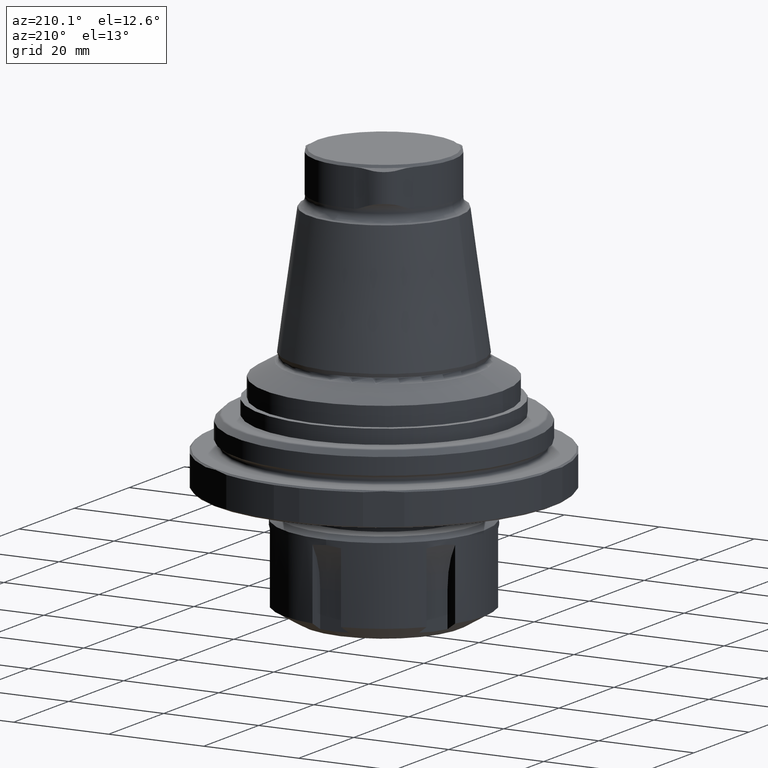
[diagram: clean part render]
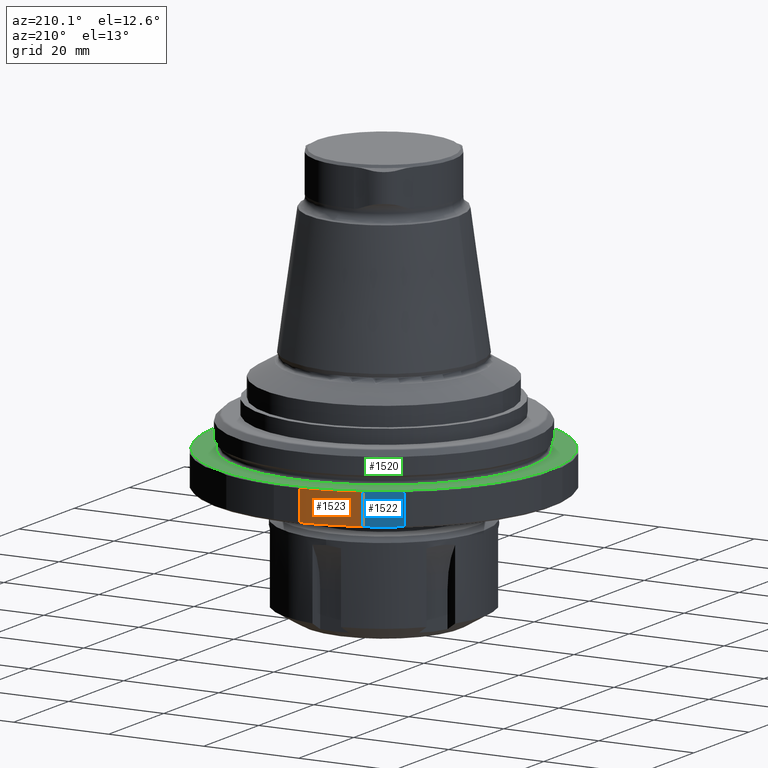
[diagram: same view with three faces highlighted in distinct colors, each labeled with its STEP entity id]
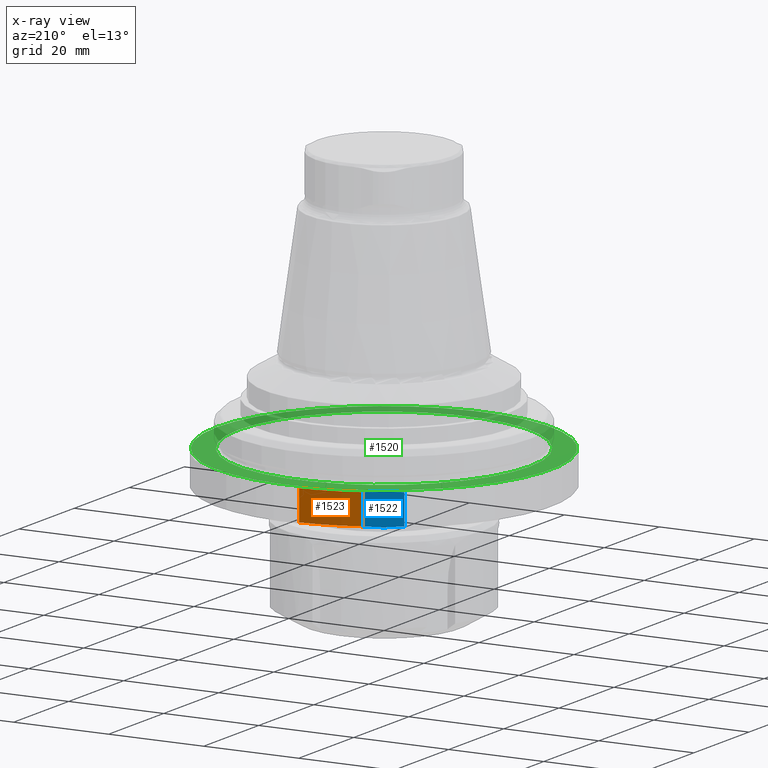
[diagram: x-ray of the same camera — body ghosted, the three highlighted faces saturated]
A machine part, auxiliary view with three faces highlighted in distinct colors.
The next image is the same camera in x-ray (body ghosted, the three faces saturated) — at least one of them is partly hidden behind the body in this view.
Their STEP definitions:

[orange] entity #1523 — the highlighted cylindrical surface (partial cylindrical patch) has radius 35.5 mm, axis along (0, -0, -1).
#121=LINE('',#2556,#179);
#122=LINE('',#2558,#180);
#179=VECTOR('',#1999,1000.);
#180=VECTOR('',#2002,1000.);
#259=CYLINDRICAL_SURFACE('',#1683,35.5);
#495=ORIENTED_EDGE('',*,*,#820,.F.);
#496=ORIENTED_EDGE('',*,*,#825,.F.);
#497=ORIENTED_EDGE('',*,*,#821,.T.);
#498=ORIENTED_EDGE('',*,*,#826,.T.);
#820=EDGE_CURVE('',#1005,#1002,#121,.F.);
#821=EDGE_CURVE('',#1006,#1007,#122,.F.);
#825=EDGE_CURVE('',#1006,#1005,#1123,.T.);
#826=EDGE_CURVE('',#1007,#1002,#1124,.T.);
#1002=VERTEX_POINT('',#2547);
#1005=VERTEX_POINT('',#2555);
#1006=VERTEX_POINT('',#2559);
#1007=VERTEX_POINT('',#2560);
#1123=CIRCLE('',#1684,35.5);
#1124=CIRCLE('',#1685,35.5);
#1236=EDGE_LOOP('',(#495,#496,#497,#498));
#1376=FACE_BOUND('',#1236,.T.);
#1523=ADVANCED_FACE('',(#1376),#259,.T.);
#1683=AXIS2_PLACEMENT_3D('',#2572,#2004,#2005);
#1684=AXIS2_PLACEMENT_3D('',#2573,#2006,#2007);
#1685=AXIS2_PLACEMENT_3D('',#2574,#2008,#2009);
#1999=DIRECTION('',(2.51499441280814E-17,-2.60563148754756E-18,-1.));
#2002=DIRECTION('',(2.51499441280813E-17,-2.60563148754756E-18,-1.));
#2004=DIRECTION('',(2.51499441280814E-17,-2.60563148754756E-18,-1.));
#2005=DIRECTION('',(1.,-1.83694883835627E-16,2.51499441280814E-17));
#2006=DIRECTION('',(2.51499441280814E-17,-2.60563148754756E-18,-1.));
#2007=DIRECTION('',(1.,-1.83694883835627E-16,2.51499441280814E-17));
#2008=DIRECTION('',(2.51499441280814E-17,-2.60563148754756E-18,-1.));
#2009=DIRECTION('',(1.,-1.83694883835627E-16,2.51499441280814E-17));
#2547=CARTESIAN_POINT('',(-2.66270539113889,35.4,-1.30000000000001));
#2555=CARTESIAN_POINT('',(-2.66270539113889,35.4,-7.70000000000002));
#2556=CARTESIAN_POINT('',(-2.66270539113889,35.4,-1.00000000000001));
#2558=CARTESIAN_POINT('',(-14.3911658526399,32.4521855258134,-1.00000000000001));
#2559=CARTESIAN_POINT('',(-14.3911658526399,32.4521855258134,-7.70000000000001));
#2560=CARTESIAN_POINT('',(-14.3911658526399,32.4521855258134,-1.30000000000001));
#2572=CARTESIAN_POINT('',(6.91930965057338E-15,-2.13529515197911E-15,-1.00000000000001));
#2573=CARTESIAN_POINT('',(7.08781427623152E-15,-2.15275288294568E-15,-7.70000000000001));
#2574=CARTESIAN_POINT('',(6.9268546338118E-15,-2.13607684142537E-15,-1.30000000000001));

[blue] entity #1522 — the highlighted planar face has unit normal (0.5, -0.866, 0).
#52=B_SPLINE_CURVE_WITH_KNOTS('',3,(#2561,#2562,#2563,#2564),
 .UNSPECIFIED.,.F.,.F.,(4,4),(0.0142564267081391,0.0217467200872314),
 .UNSPECIFIED.);
#53=B_SPLINE_CURVE_WITH_KNOTS('',3,(#2568,#2569,#2570,#2571),
 .UNSPECIFIED.,.F.,.F.,(4,4),(0.00301971742095615,0.0105389064051034),
 .UNSPECIFIED.);
#122=LINE('',#2558,#180);
#123=LINE('',#2566,#181);
#180=VECTOR('',#2002,1000.);
#181=VECTOR('',#2003,1000.);
#230=PLANE('',#1682);
#491=ORIENTED_EDGE('',*,*,#821,.F.);
#492=ORIENTED_EDGE('',*,*,#822,.F.);
#493=ORIENTED_EDGE('',*,*,#823,.F.);
#494=ORIENTED_EDGE('',*,*,#824,.F.);
#821=EDGE_CURVE('',#1006,#1007,#122,.F.);
#822=EDGE_CURVE('',#1008,#1006,#52,.T.);
#823=EDGE_CURVE('',#1009,#1008,#123,.T.);
#824=EDGE_CURVE('',#1007,#1009,#53,.T.);
#1006=VERTEX_POINT('',#2559);
#1007=VERTEX_POINT('',#2560);
#1008=VERTEX_POINT('',#2565);
#1009=VERTEX_POINT('',#2567);
#1235=EDGE_LOOP('',(#491,#492,#493,#494));
#1375=FACE_BOUND('',#1235,.T.);
#1522=ADVANCED_FACE('',(#1375),#230,.F.);
#1682=AXIS2_PLACEMENT_3D('',#2557,#2000,#2001);
#2000=DIRECTION('',(0.5,-0.866025403784438,1.48315151251575E-17));
#2001=DIRECTION('',(2.51499441280813E-17,-2.60563148754756E-18,-1.));
#2002=DIRECTION('',(2.51499441280813E-17,-2.60563148754756E-18,-1.));
#2003=DIRECTION('',(2.51499441280813E-17,-2.60563148754756E-18,-1.));
#2557=CARTESIAN_POINT('',(-17.65,30.5706967535907,-4.50000000000001));
#2558=CARTESIAN_POINT('',(-14.3911658526399,32.4521855258134,-1.00000000000001));
#2559=CARTESIAN_POINT('',(-14.3911658526399,32.4521855258134,-7.70000000000001));
#2560=CARTESIAN_POINT('',(-14.3911658526399,32.4521855258134,-1.30000000000001));
#2561=CARTESIAN_POINT('',(-20.9088341473601,28.689207981368,-7.70000000000001));
#2562=CARTESIAN_POINT('',(-18.7270089611764,29.9488853399359,-7.96705000639647));
#2563=CARTESIAN_POINT('',(-16.5539924560933,31.2034770040991,-7.96472462686021));
#2564=CARTESIAN_POINT('',(-14.3911658526399,32.4521855258134,-7.70000000000002));
#2565=CARTESIAN_POINT('',(-20.9088341473601,28.689207981368,-7.70000000000002));
#2566=CARTESIAN_POINT('',(-20.9088341473601,28.689207981368,-1.00000000000001));
#2567=CARTESIAN_POINT('',(-20.9088341473601,28.689207981368,-1.30000000000001));
#2568=CARTESIAN_POINT('',(-14.3911658526399,32.4521855258134,-1.30000000000001));
#2569=CARTESIAN_POINT('',(-16.5539924560933,31.2034770040991,-1.03527537313981));
#2570=CARTESIAN_POINT('',(-18.7270089611764,29.9488853399359,-1.03294999360354));
#2571=CARTESIAN_POINT('',(-20.9088341473601,28.689207981368,-1.30000000000001));

[green] entity #1520 — the highlighted planar face has unit normal (0, -0, -1).
#228=PLANE('',#1679);
#485=ORIENTED_EDGE('',*,*,#814,.T.);
#486=ORIENTED_EDGE('',*,*,#816,.F.);
#814=EDGE_CURVE('',#999,#999,#1120,.T.);
#816=EDGE_CURVE('',#1001,#1001,#1122,.T.);
#999=VERTEX_POINT('',#2535);
#1001=VERTEX_POINT('',#2541);
#1120=CIRCLE('',#1676,30.65);
#1122=CIRCLE('',#1680,35.2);
#1232=EDGE_LOOP('',(#485));
#1233=EDGE_LOOP('',(#486));
#1372=FACE_BOUND('',#1232,.T.);
#1373=FACE_BOUND('',#1233,.T.);
#1520=ADVANCED_FACE('',(#1372,#1373),#228,.F.);
#1676=AXIS2_PLACEMENT_3D('',#2534,#1986,#1987);
#1679=AXIS2_PLACEMENT_3D('',#2539,#1992,#1993);
#1680=AXIS2_PLACEMENT_3D('',#2540,#1994,#1995);
#1986=DIRECTION('',(2.51499441280814E-17,-2.60563148754756E-18,-1.));
#1987=DIRECTION('',(1.,-1.83694883835627E-16,2.51499441280814E-17));
#1992=DIRECTION('',(2.51499441280814E-17,-2.60563148754756E-18,-1.));
#1993=DIRECTION('',(1.,-1.83694883835627E-16,2.51499441280814E-17));
#1994=DIRECTION('',(2.51499441280814E-17,-2.60563148754756E-18,-1.));
#1995=DIRECTION('',(1.,-1.83694883835627E-16,2.51499441280814E-17));
#2534=CARTESIAN_POINT('',(6.91930965057338E-15,-2.13529515197911E-15,-1.00000000000001));
#2535=CARTESIAN_POINT('',(30.65,-7.76554334154109E-15,-1.00000000000001));
#2539=CARTESIAN_POINT('',(30.65,-7.76554334154109E-15,-1.00000000000001));
#2540=CARTESIAN_POINT('',(6.91930965057338E-15,-2.13529515197911E-15,-1.00000000000001));
#2541=CARTESIAN_POINT('',(35.2,-8.6013550629932E-15,-1.00000000000001));